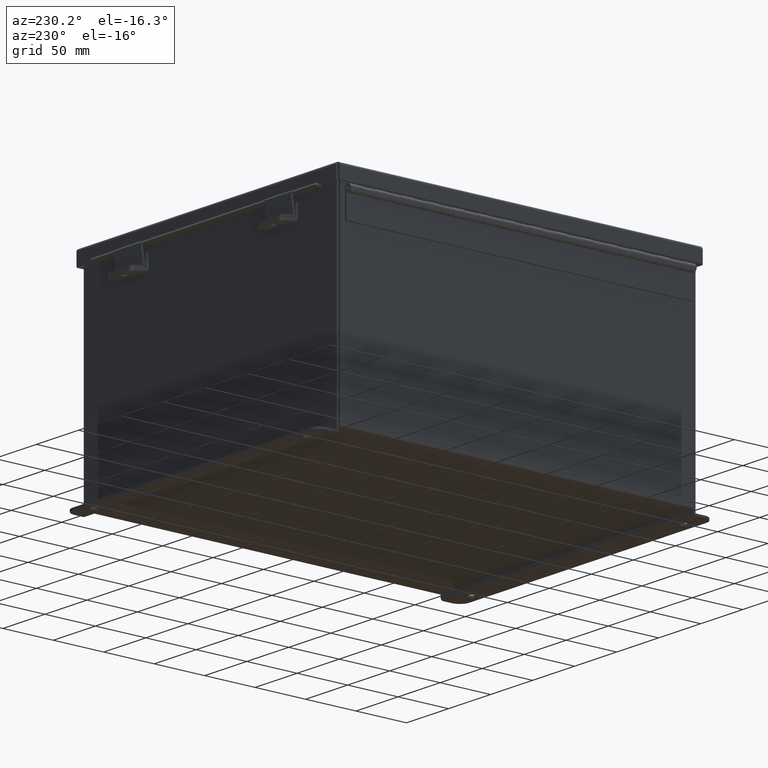
[diagram: clean part render]
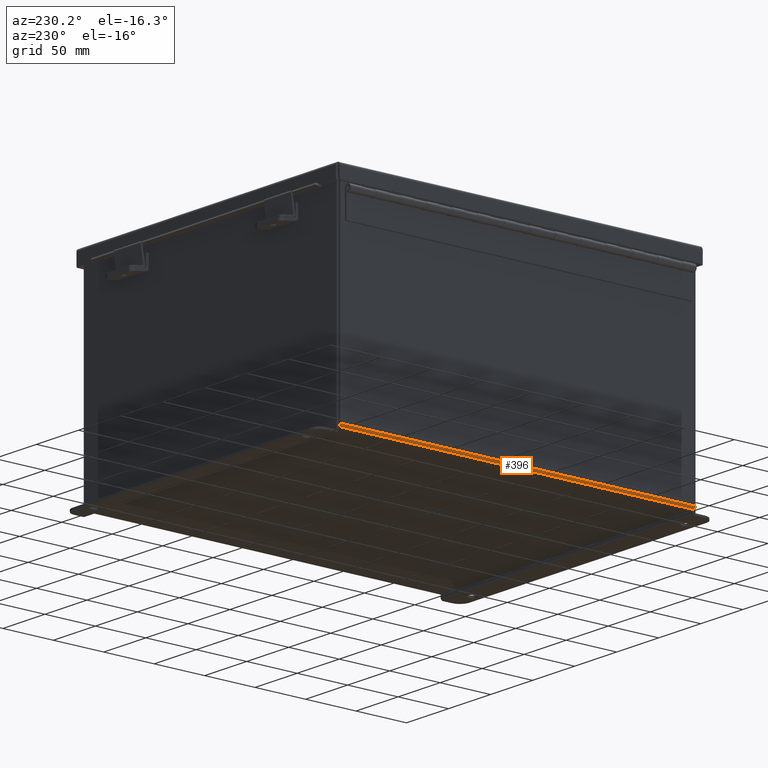
[diagram: same view with one face highlighted and labeled with its STEP entity id]
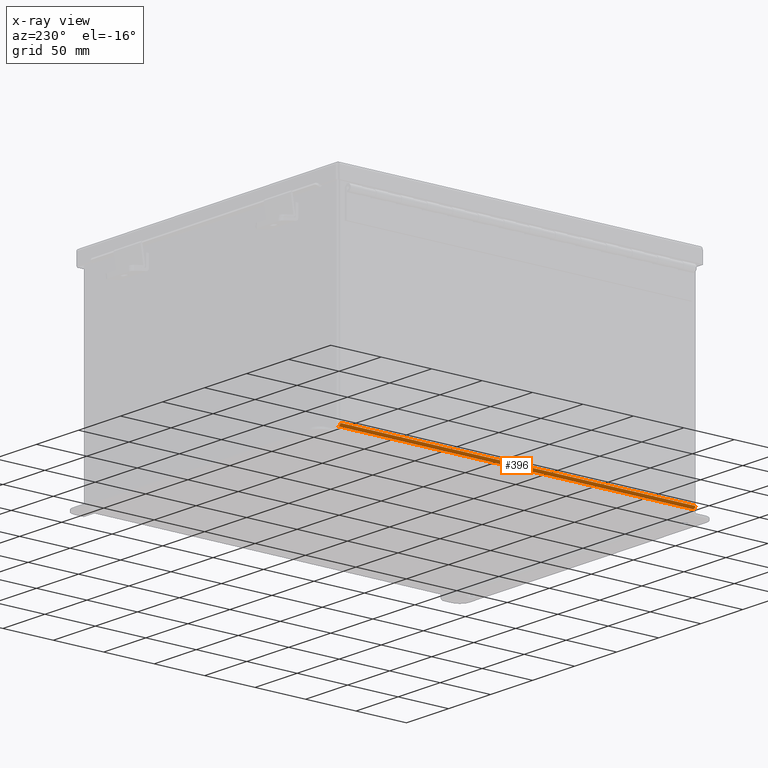
[diagram: x-ray of the same camera — body ghosted, the highlighted face saturated]
A machine part, auxiliary view. The second image highlights one B-rep face of the part: STEP entity #396.
The next image is the same camera in x-ray: the body ghosted, the highlighted face saturated — about 0% of this face is hidden behind the body in this view.
In plain terms, the highlighted cylindrical surface (edge-blend (fillet) strip) has radius 2.2276 mm, axis along (0, -1, 0).
Its self-contained STEP definition (entity closure, byte-faithful):
#396 = ADVANCED_FACE ( 'NONE', ( #17086 ), #1531, .T. ) ;
#564 = AXIS2_PLACEMENT_3D ( 'NONE', #7976, #18206, #9380 ) ;
#1051 = LINE ( 'NONE', #16193, #16162 ) ;
#1310 = VECTOR ( 'NONE', #16848, 39.37007874015748100 ) ;
#1473 = VERTEX_POINT ( 'NONE', #17463 ) ;
#1531 = CYLINDRICAL_SURFACE ( 'NONE', #10320, 0.08770000000000026400 ) ;
#2667 = CARTESIAN_POINT ( 'NONE',  ( -5.912300000000000100, -6.925300000000000900, 0.01300000000000015000 ) ) ;
#3453 = CARTESIAN_POINT ( 'NONE',  ( -5.912300000000000100, 6.925299999999998200, -0.07470000000000000300 ) ) ;
#3766 = ORIENTED_EDGE ( 'NONE', *, *, #16696, .F. ) ;
#4562 = CIRCLE ( 'NONE', #564, 0.08770000000000009700 ) ;
#4643 = DIRECTION ( 'NONE',  ( 0.0000000000000000000, -1.000000000000000000, 0.0000000000000000000 ) ) ;
#5174 = ORIENTED_EDGE ( 'NONE', *, *, #11623, .F. ) ;
#5416 = ORIENTED_EDGE ( 'NONE', *, *, #14384, .F. ) ;
#6321 = CARTESIAN_POINT ( 'NONE',  ( -6.000000000000000900, -6.925299999999999100, 0.01299999999999984300 ) ) ;
#6907 = EDGE_LOOP ( 'NONE', ( #5416, #5174, #10149, #3766 ) ) ;
#7495 = DIRECTION ( 'NONE',  ( -0.0000000000000000000, 1.000000000000000000, -0.0000000000000000000 ) ) ;
#7976 = CARTESIAN_POINT ( 'NONE',  ( -5.912300000000000100, 6.925299999999998200, 0.01300000000000015000 ) ) ;
#8109 = CARTESIAN_POINT ( 'NONE',  ( -5.912300000000000100, -6.925300000000000900, -0.07469999999999994700 ) ) ;
#8697 = CIRCLE ( 'NONE', #9698, 0.08770000000000009700 ) ;
#9048 = LINE ( 'NONE', #8109, #1310 ) ;
#9380 = DIRECTION ( 'NONE',  ( 0.0000000000000000000, 0.0000000000000000000, -1.000000000000000000 ) ) ;
#9698 = AXIS2_PLACEMENT_3D ( 'NONE', #13288, #4643, #14793 ) ;
#9913 = DIRECTION ( 'NONE',  ( -1.000000000000000000, 0.0000000000000000000, -3.480030137311043200E-015 ) ) ;
#10149 = ORIENTED_EDGE ( 'NONE', *, *, #17132, .T. ) ;
#10320 = AXIS2_PLACEMENT_3D ( 'NONE', #2667, #10724, #9913 ) ;
#10724 = DIRECTION ( 'NONE',  ( 0.0000000000000000000, -1.000000000000000000, 0.0000000000000000000 ) ) ;
#11623 = EDGE_CURVE ( 'NONE', #15975, #1473, #8697, .T. ) ;
#11652 = CARTESIAN_POINT ( 'NONE',  ( -6.000000000000000900, 6.925299999999998200, 0.01299999999999984300 ) ) ;
#13288 = CARTESIAN_POINT ( 'NONE',  ( -5.912300000000000100, -6.925299999999999100, 0.01300000000000015000 ) ) ;
#13904 = VERTEX_POINT ( 'NONE', #11652 ) ;
#14384 = EDGE_CURVE ( 'NONE', #1473, #14835, #9048, .T. ) ;
#14793 = DIRECTION ( 'NONE',  ( 0.0000000000000000000, 0.0000000000000000000, -1.000000000000000000 ) ) ;
#14835 = VERTEX_POINT ( 'NONE', #3453 ) ;
#15975 = VERTEX_POINT ( 'NONE', #6321 ) ;
#16162 = VECTOR ( 'NONE', #7495, 39.37007874015748100 ) ;
#16193 = CARTESIAN_POINT ( 'NONE',  ( -6.000000000000000900, 6.925299999999998200, 0.01299999999999984300 ) ) ;
#16696 = EDGE_CURVE ( 'NONE', #14835, #13904, #4562, .T. ) ;
#16848 = DIRECTION ( 'NONE',  ( -0.0000000000000000000, 1.000000000000000000, -0.0000000000000000000 ) ) ;
#17086 = FACE_OUTER_BOUND ( 'NONE', #6907, .T. ) ;
#17132 = EDGE_CURVE ( 'NONE', #15975, #13904, #1051, .T. ) ;
#17463 = CARTESIAN_POINT ( 'NONE',  ( -5.912300000000000100, -6.925299999999999100, -0.07469999999999994700 ) ) ;
#18206 = DIRECTION ( 'NONE',  ( -0.0000000000000000000, 1.000000000000000000, -0.0000000000000000000 ) ) ;